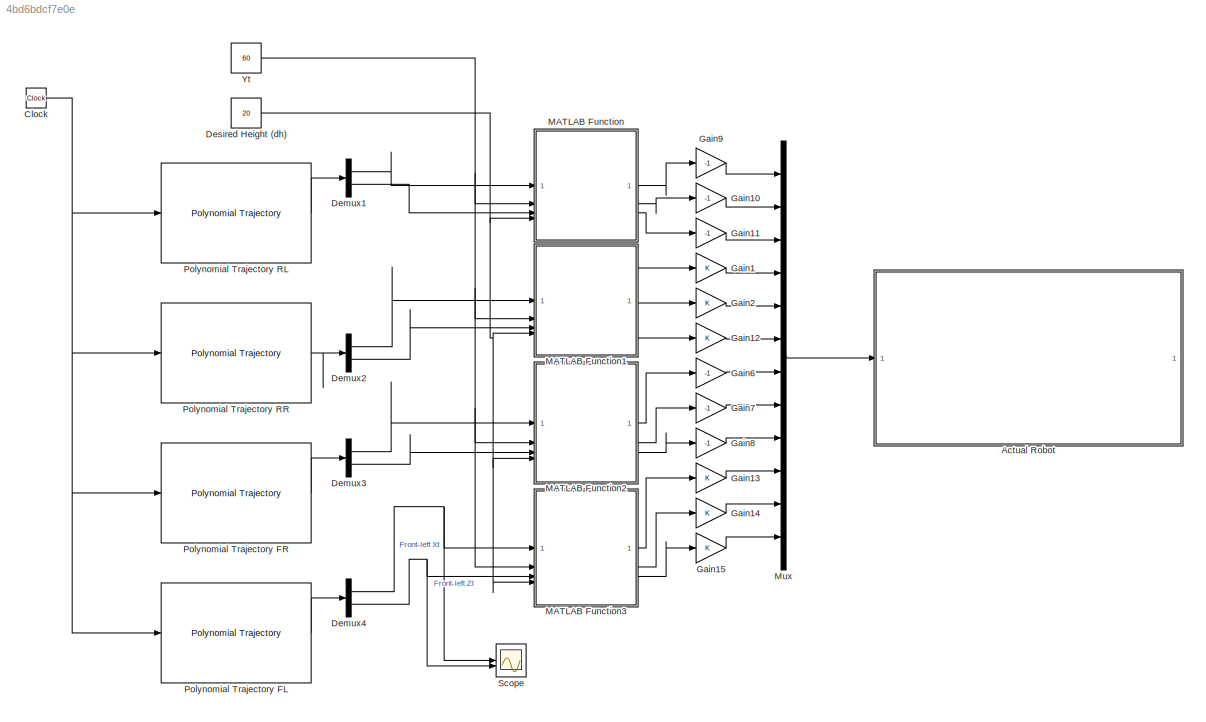
MODEL slx_4bd6bdcf7e0e
KIND model
CONFIG AbsTol = auto
CONFIG EnableMultiTasking = off
CONFIG FixedStep = 0.01
CONFIG MaxStep = auto
CONFIG MinStep = auto
CONFIG RelTol = 1e-3
CONFIG SampleTimeConstraint = Unconstrained
CONFIG SolverName = ode23tb
CONFIG StartTime = 0.0
CONFIG StopTime = 10
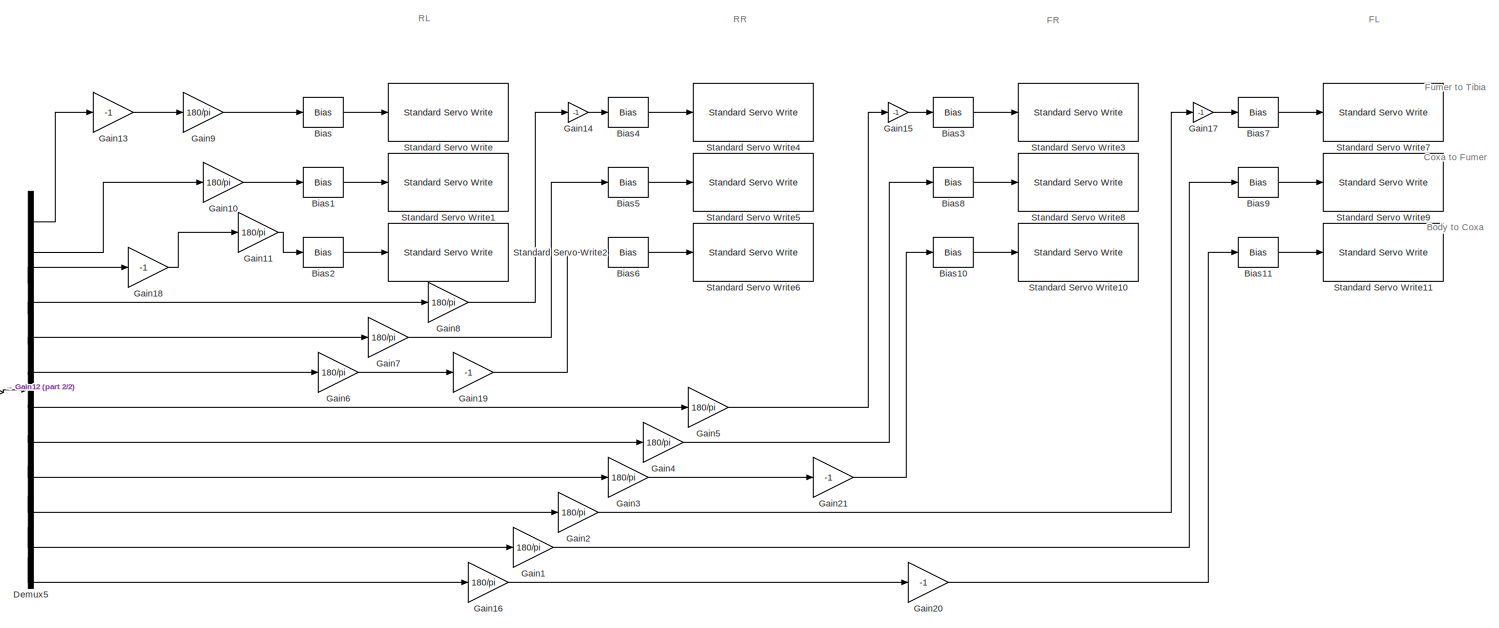
[diagram: Actual Robot - part 1/2, most of the canvas]
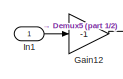
[diagram: Actual Robot - part 2/2, middle left region]
BLOCK [SubSystem] Actual Robot
BLOCK [Bias] Actual Robot/Bias
  Bias = 90
  SaturateOnIntegerOverflow = off
BLOCK [Bias] Actual Robot/Bias1
  Bias = 90
  SaturateOnIntegerOverflow = off
BLOCK [Bias] Actual Robot/Bias10
  Bias = 90
  SaturateOnIntegerOverflow = off
BLOCK [Bias] Actual Robot/Bias11
  Bias = 90
  SaturateOnIntegerOverflow = off
BLOCK [Bias] Actual Robot/Bias2
  Bias = 90
  SaturateOnIntegerOverflow = off
BLOCK [Bias] Actual Robot/Bias3
  Bias = 90
  SaturateOnIntegerOverflow = off
BLOCK [Bias] Actual Robot/Bias4
  Bias = 90
  SaturateOnIntegerOverflow = off
BLOCK [Bias] Actual Robot/Bias5
  Bias = 90
  SaturateOnIntegerOverflow = off
BLOCK [Bias] Actual Robot/Bias6
  Bias = 90
  SaturateOnIntegerOverflow = off
BLOCK [Bias] Actual Robot/Bias7
  Bias = 90
  SaturateOnIntegerOverflow = off
BLOCK [Bias] Actual Robot/Bias8
  Bias = 90
  SaturateOnIntegerOverflow = off
BLOCK [Bias] Actual Robot/Bias9
  Bias = 90
  SaturateOnIntegerOverflow = off
BLOCK [Demux] Actual Robot/Demux5
  Outputs = 12
BLOCK [Gain] Actual Robot/Gain1
  Gain = 180/pi
BLOCK [Gain] Actual Robot/Gain10
  Gain = 180/pi
BLOCK [Gain] Actual Robot/Gain11
  Gain = 180/pi
BLOCK [Gain] Actual Robot/Gain12
  Gain = -1
BLOCK [Gain] Actual Robot/Gain13
  Gain = -1
BLOCK [Gain] Actual Robot/Gain14
  Gain = -1
BLOCK [Gain] Actual Robot/Gain15
  Gain = -1
BLOCK [Gain] Actual Robot/Gain16
  Gain = 180/pi
BLOCK [Gain] Actual Robot/Gain17
  Gain = -1
BLOCK [Gain] Actual Robot/Gain18
  Gain = -1
BLOCK [Gain] Actual Robot/Gain19
  Gain = -1
BLOCK [Gain] Actual Robot/Gain2
  Gain = 180/pi
BLOCK [Gain] Actual Robot/Gain20
  Gain = -1
BLOCK [Gain] Actual Robot/Gain21
  Gain = -1
BLOCK [Gain] Actual Robot/Gain3
  Gain = 180/pi
BLOCK [Gain] Actual Robot/Gain4
  Gain = 180/pi
BLOCK [Gain] Actual Robot/Gain5
  Gain = 180/pi
BLOCK [Gain] Actual Robot/Gain6
  Gain = 180/pi
BLOCK [Gain] Actual Robot/Gain7
  Gain = 180/pi
BLOCK [Gain] Actual Robot/Gain8
  Gain = 180/pi
BLOCK [Gain] Actual Robot/Gain9
  Gain = 180/pi
BLOCK [Inport] Actual Robot/In1
BLOCK [Reference] Actual Robot/Standard Servo Write  REF=arduinolib/Standard Servo Write
  SourceBlock = arduinolib/Standard Servo Write
  SourceType = Arduino Standard Servo Write
BLOCK [Reference] Actual Robot/Standard Servo Write1  REF=arduinolib/Standard Servo Write
  SourceBlock = arduinolib/Standard Servo Write
  SourceType = Arduino Standard Servo Write
BLOCK [Reference] Actual Robot/Standard Servo Write10  REF=arduinolib/Standard Servo Write
  SourceBlock = arduinolib/Standard Servo Write
  SourceType = Arduino Standard Servo Write
BLOCK [Reference] Actual Robot/Standard Servo Write11  REF=arduinolib/Standard Servo Write
  SourceBlock = arduinolib/Standard Servo Write
  SourceType = Arduino Standard Servo Write
BLOCK [Reference] Actual Robot/Standard Servo Write2  REF=arduinolib/Standard Servo Write
  SourceBlock = arduinolib/Standard Servo Write
  SourceType = Arduino Standard Servo Write
BLOCK [Reference] Actual Robot/Standard Servo Write3  REF=arduinolib/Standard Servo Write
  SourceBlock = arduinolib/Standard Servo Write
  SourceType = Arduino Standard Servo Write
BLOCK [Reference] Actual Robot/Standard Servo Write4  REF=arduinolib/Standard Servo Write
  SourceBlock = arduinolib/Standard Servo Write
  SourceType = Arduino Standard Servo Write
BLOCK [Reference] Actual Robot/Standard Servo Write5  REF=arduinolib/Standard Servo Write
  SourceBlock = arduinolib/Standard Servo Write
  SourceType = Arduino Standard Servo Write
BLOCK [Reference] Actual Robot/Standard Servo Write6  REF=arduinolib/Standard Servo Write
  SourceBlock = arduinolib/Standard Servo Write
  SourceType = Arduino Standard Servo Write
BLOCK [Reference] Actual Robot/Standard Servo Write7  REF=arduinolib/Standard Servo Write
  SourceBlock = arduinolib/Standard Servo Write
  SourceType = Arduino Standard Servo Write
BLOCK [Reference] Actual Robot/Standard Servo Write8  REF=arduinolib/Standard Servo Write
  SourceBlock = arduinolib/Standard Servo Write
  SourceType = Arduino Standard Servo Write
BLOCK [Reference] Actual Robot/Standard Servo Write9  REF=arduinolib/Standard Servo Write
  SourceBlock = arduinolib/Standard Servo Write
  SourceType = Arduino Standard Servo Write
BLOCK [Clock] Clock
BLOCK [Demux] Demux1
  Outputs = 2
BLOCK [Demux] Demux2
  Outputs = 2
BLOCK [Demux] Demux3
  Outputs = 2
BLOCK [Demux] Demux4
  Outputs = 2
BLOCK [Constant] Desired Height (dh)
  Value = 20
BLOCK [Gain] Gain1
BLOCK [Gain] Gain10
  Gain = -1
BLOCK [Gain] Gain11
  Gain = -1
BLOCK [Gain] Gain12
BLOCK [Gain] Gain13
BLOCK [Gain] Gain14
BLOCK [Gain] Gain15
BLOCK [Gain] Gain2
BLOCK [Gain] Gain6
  Gain = -1
BLOCK [Gain] Gain7
  Gain = -1
BLOCK [Gain] Gain8
  Gain = -1
BLOCK [Gain] Gain9
  Gain = -1
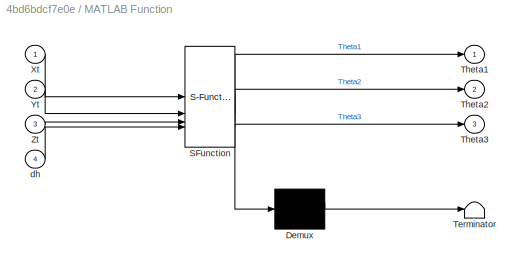
BLOCK [SubSystem] MATLAB Function
  ErrorFcn = Stateflow.Translate.translate
  PermitHierarchicalResolution = ExplicitOnly
  SFBlockType = MATLAB Function
  TreatAsAtomicUnit = on
BLOCK [Demux] MATLAB Function/ Demux 
  Outputs = 1
BLOCK [S-Function] MATLAB Function/ SFunction 
  EnableBusSupport = on
  FunctionName = sf_sfun
  PortCounts = [4 4]
  SFcnIsStateOwnerBlock = off
  SFunctionDeploymentMode = off
  Tag = Stateflow S-Function 3
BLOCK [Terminator] MATLAB Function/ Terminator 
BLOCK [Outport] MATLAB Function/Theta1
BLOCK [Outport] MATLAB Function/Theta2
  Port = 2
BLOCK [Outport] MATLAB Function/Theta3
  Port = 3
BLOCK [Inport] MATLAB Function/Xt
BLOCK [Inport] MATLAB Function/Yt
  Port = 2
BLOCK [Inport] MATLAB Function/Zt
  Port = 3
BLOCK [Inport] MATLAB Function/dh
  Port = 4
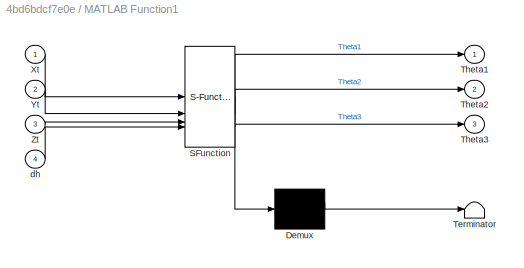
BLOCK [SubSystem] MATLAB Function1
  ErrorFcn = Stateflow.Translate.translate
  PermitHierarchicalResolution = ExplicitOnly
  SFBlockType = MATLAB Function
  TreatAsAtomicUnit = on
BLOCK [Demux] MATLAB Function1/ Demux 
  Outputs = 1
BLOCK [S-Function] MATLAB Function1/ SFunction 
  EnableBusSupport = on
  FunctionName = sf_sfun
  PortCounts = [4 4]
  SFcnIsStateOwnerBlock = off
  SFunctionDeploymentMode = off
  Tag = Stateflow S-Function 1
BLOCK [Terminator] MATLAB Function1/ Terminator 
BLOCK [Outport] MATLAB Function1/Theta1
BLOCK [Outport] MATLAB Function1/Theta2
  Port = 2
BLOCK [Outport] MATLAB Function1/Theta3
  Port = 3
BLOCK [Inport] MATLAB Function1/Xt
BLOCK [Inport] MATLAB Function1/Yt
  Port = 2
BLOCK [Inport] MATLAB Function1/Zt
  Port = 3
BLOCK [Inport] MATLAB Function1/dh
  Port = 4
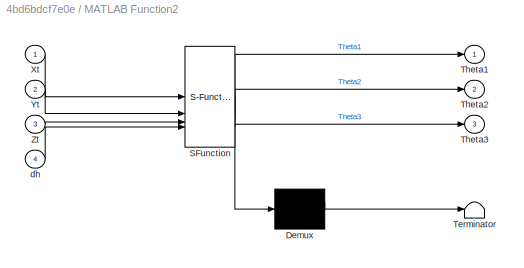
BLOCK [SubSystem] MATLAB Function2
  ErrorFcn = Stateflow.Translate.translate
  PermitHierarchicalResolution = ExplicitOnly
  SFBlockType = MATLAB Function
  TreatAsAtomicUnit = on
BLOCK [Demux] MATLAB Function2/ Demux 
  Outputs = 1
BLOCK [S-Function] MATLAB Function2/ SFunction 
  EnableBusSupport = on
  FunctionName = sf_sfun
  PortCounts = [4 4]
  SFcnIsStateOwnerBlock = off
  SFunctionDeploymentMode = off
  Tag = Stateflow S-Function 2
BLOCK [Terminator] MATLAB Function2/ Terminator 
BLOCK [Outport] MATLAB Function2/Theta1
BLOCK [Outport] MATLAB Function2/Theta2
  Port = 2
BLOCK [Outport] MATLAB Function2/Theta3
  Port = 3
BLOCK [Inport] MATLAB Function2/Xt
BLOCK [Inport] MATLAB Function2/Yt
  Port = 2
BLOCK [Inport] MATLAB Function2/Zt
  Port = 3
BLOCK [Inport] MATLAB Function2/dh
  Port = 4
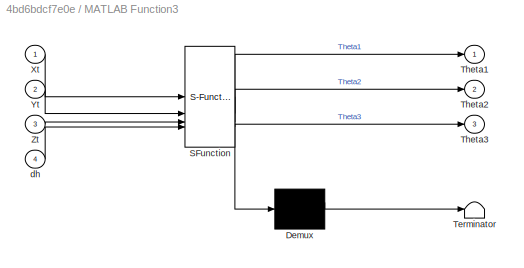
BLOCK [SubSystem] MATLAB Function3
  ErrorFcn = Stateflow.Translate.translate
  PermitHierarchicalResolution = ExplicitOnly
  SFBlockType = MATLAB Function
  TreatAsAtomicUnit = on
BLOCK [Demux] MATLAB Function3/ Demux 
  Outputs = 1
BLOCK [S-Function] MATLAB Function3/ SFunction 
  EnableBusSupport = on
  FunctionName = sf_sfun
  PortCounts = [4 4]
  SFcnIsStateOwnerBlock = off
  SFunctionDeploymentMode = off
  Tag = Stateflow S-Function 4
BLOCK [Terminator] MATLAB Function3/ Terminator 
BLOCK [Outport] MATLAB Function3/Theta1
BLOCK [Outport] MATLAB Function3/Theta2
  Port = 2
BLOCK [Outport] MATLAB Function3/Theta3
  Port = 3
BLOCK [Inport] MATLAB Function3/Xt
BLOCK [Inport] MATLAB Function3/Yt
  Port = 2
BLOCK [Inport] MATLAB Function3/Zt
  Port = 3
BLOCK [Inport] MATLAB Function3/dh
  Port = 4
BLOCK [Mux] Mux
  DisplayOption = bar
  Inputs = 12
BLOCK [Reference] Polynomial Trajectory FL  REF=robotcorelib/Polynomial Trajectory
  SourceBlock = robotcorelib/Polynomial Trajectory
  SourceType = robotics.slcore.internal.block.PolyTrajSys
BLOCK [Reference] Polynomial Trajectory FR  REF=robotcorelib/Polynomial Trajectory
  SourceBlock = robotcorelib/Polynomial Trajectory
  SourceType = robotics.slcore.internal.block.PolyTrajSys
BLOCK [Reference] Polynomial Trajectory RL  REF=robotcorelib/Polynomial Trajectory
  SourceBlock = robotcorelib/Polynomial Trajectory
  SourceType = robotics.slcore.internal.block.PolyTrajSys
BLOCK [Reference] Polynomial Trajectory RR  REF=robotcorelib/Polynomial Trajectory
  SourceBlock = robotcorelib/Polynomial Trajectory
  SourceType = robotics.slcore.internal.block.PolyTrajSys
BLOCK [Scope] Scope
  Floating = off
  NumInputPorts = 2
  ScopeSpecificationString = Simulink.scopes.TimeScopeBlockCfg('CurrentConfiguration', extmgr.ConfigurationSet(extmgr.Configuration('Core','General UI',true,'FigureColor',[1 1 1]),extmgr.Configuration('Core','Source UI',true),extmgr.Configuration('Sources','WiredSimulink',true),extmgr.Configuration('Visuals','Time Domain',true,'SerializedDisplays',{struct('MinYLimReal','-16.25','MaxYLimReal','46.25','YLabelReal','','MinYLimMa...<+1694ch>
BLOCK [Constant] Yt
  Value = 60
ANNOTATION Actual Robot: Body to Coxa
ANNOTATION Actual Robot: Coxa to Fumer
ANNOTATION Actual Robot: FL
ANNOTATION Actual Robot: FR
ANNOTATION Actual Robot: Fumer to Tibia
ANNOTATION Actual Robot: RR
ANNOTATION Actual Robot: RL
LINE Actual Robot/Bias10:1 -> Actual Robot/Standard Servo Write10:1
LINE Actual Robot/Bias11:1 -> Actual Robot/Standard Servo Write11:1
LINE Actual Robot/Bias1:1 -> Actual Robot/Standard Servo Write1:1
LINE Actual Robot/Bias2:1 -> Actual Robot/Standard Servo Write2:1
LINE Actual Robot/Bias3:1 -> Actual Robot/Standard Servo Write3:1
LINE Actual Robot/Bias4:1 -> Actual Robot/Standard Servo Write4:1
LINE Actual Robot/Bias5:1 -> Actual Robot/Standard Servo Write5:1
LINE Actual Robot/Bias6:1 -> Actual Robot/Standard Servo Write6:1
LINE Actual Robot/Bias7:1 -> Actual Robot/Standard Servo Write7:1
LINE Actual Robot/Bias8:1 -> Actual Robot/Standard Servo Write8:1
LINE Actual Robot/Bias9:1 -> Actual Robot/Standard Servo Write9:1
LINE Actual Robot/Bias:1 -> Actual Robot/Standard Servo Write:1
LINE Actual Robot/Demux5:1 -> Actual Robot/Gain13:1
LINE Actual Robot/Demux5:10 -> Actual Robot/Gain2:1
LINE Actual Robot/Demux5:11 -> Actual Robot/Gain1:1
LINE Actual Robot/Demux5:12 -> Actual Robot/Gain16:1
LINE Actual Robot/Demux5:2 -> Actual Robot/Gain10:1
LINE Actual Robot/Demux5:3 -> Actual Robot/Gain18:1
LINE Actual Robot/Demux5:4 -> Actual Robot/Gain8:1
LINE Actual Robot/Demux5:5 -> Actual Robot/Gain7:1
LINE Actual Robot/Demux5:6 -> Actual Robot/Gain6:1
LINE Actual Robot/Demux5:7 -> Actual Robot/Gain5:1
LINE Actual Robot/Demux5:8 -> Actual Robot/Gain4:1
LINE Actual Robot/Demux5:9 -> Actual Robot/Gain3:1
LINE Actual Robot/Gain10:1 -> Actual Robot/Bias1:1
LINE Actual Robot/Gain11:1 -> Actual Robot/Bias2:1
LINE Actual Robot/Gain12:1 -> Actual Robot/Demux5:1
LINE Actual Robot/Gain13:1 -> Actual Robot/Gain9:1
LINE Actual Robot/Gain14:1 -> Actual Robot/Bias4:1
LINE Actual Robot/Gain15:1 -> Actual Robot/Bias3:1
LINE Actual Robot/Gain16:1 -> Actual Robot/Gain20:1
LINE Actual Robot/Gain17:1 -> Actual Robot/Bias7:1
LINE Actual Robot/Gain18:1 -> Actual Robot/Gain11:1
LINE Actual Robot/Gain19:1 -> Actual Robot/Bias6:1
LINE Actual Robot/Gain1:1 -> Actual Robot/Bias9:1
LINE Actual Robot/Gain20:1 -> Actual Robot/Bias11:1
LINE Actual Robot/Gain21:1 -> Actual Robot/Bias10:1
LINE Actual Robot/Gain2:1 -> Actual Robot/Gain17:1
LINE Actual Robot/Gain3:1 -> Actual Robot/Gain21:1
LINE Actual Robot/Gain4:1 -> Actual Robot/Bias8:1
LINE Actual Robot/Gain5:1 -> Actual Robot/Gain15:1
LINE Actual Robot/Gain6:1 -> Actual Robot/Gain19:1
LINE Actual Robot/Gain7:1 -> Actual Robot/Bias5:1
LINE Actual Robot/Gain8:1 -> Actual Robot/Gain14:1
LINE Actual Robot/Gain9:1 -> Actual Robot/Bias:1
LINE Actual Robot/In1:1 -> Actual Robot/Gain12:1
NET Clock:1 -> Polynomial Trajectory FL:1, Polynomial Trajectory FR:1, Polynomial Trajectory RL:1, Polynomial Trajectory RR:1
LINE Demux1:1 -> MATLAB Function:1
LINE Demux1:2 -> MATLAB Function:3
LINE Demux2:1 -> MATLAB Function1:1
LINE Demux2:2 -> MATLAB Function1:3
LINE Demux3:1 -> MATLAB Function2:1
LINE Demux3:2 -> MATLAB Function2:3
NET Demux4:1 -> MATLAB Function3:1, Scope:1
NET Demux4:2 -> MATLAB Function3:3, Scope:2
NET Desired Height (dh):1 -> MATLAB Function1:4, MATLAB Function2:4, MATLAB Function3:4, MATLAB Function:4
LINE Gain10:1 -> Mux:2
LINE Gain11:1 -> Mux:3
LINE Gain12:1 -> Mux:6
LINE Gain13:1 -> Mux:10
LINE Gain14:1 -> Mux:11
LINE Gain15:1 -> Mux:12
LINE Gain1:1 -> Mux:4
LINE Gain2:1 -> Mux:5
LINE Gain6:1 -> Mux:7
LINE Gain7:1 -> Mux:8
LINE Gain8:1 -> Mux:9
LINE Gain9:1 -> Mux:1
LINE MATLAB Function1:1 -> Gain1:1
LINE MATLAB Function1:2 -> Gain2:1
LINE MATLAB Function1:3 -> Gain12:1
LINE MATLAB Function2:1 -> Gain6:1
LINE MATLAB Function2:2 -> Gain7:1
LINE MATLAB Function2:3 -> Gain8:1
LINE MATLAB Function3:1 -> Gain13:1
LINE MATLAB Function3:2 -> Gain14:1
LINE MATLAB Function3:3 -> Gain15:1
LINE MATLAB Function:1 -> Gain9:1
LINE MATLAB Function:2 -> Gain10:1
LINE MATLAB Function:3 -> Gain11:1
LINE Mux:1 -> Actual Robot:1
LINE Polynomial Trajectory FL:1 -> Demux4:1
LINE Polynomial Trajectory FR:1 -> Demux3:1
LINE Polynomial Trajectory RL:1 -> Demux1:1
LINE Polynomial Trajectory RR:1 -> Demux2:1
NET Yt:1 -> MATLAB Function1:2, MATLAB Function2:2, MATLAB Function3:2, MATLAB Function:2
note: NET lines group one-source signal fan-out (src -> all destinations, sorted); 1:1 wires keep LINE
CHART MATLAB Function1 states=1 transitions=1
  STATE_LABEL 'eML_blk_kernel()'
  STATE_LABEL 'SCRIPT:\nfunction [Theta1,Theta2,Theta3] = fcn(Xt,Yt,Zt,dh)\n%Desired_height (dh) of the SV3 Axel \nZ_offset = (dh +22.5 -Zt);\nD = sqrt((Xt)^2 + (Yt)^2);\nd = D - 27.5;\nR = sqrt((d)^2 + (Z_offset)^2);\nTheta3 = -(atan( Xt/Yt ));\nTheta2 =pi/2-(acos((55^2+R^2-80^2)/(2*55*R))+acos(Z_offset/R)) ;\nTheta1 =pi/2-(acos((55^2+80^2-R^2)/(2*55*80)));\n'  <repeated x4 — deduplicated; at blocks: MATLAB Function1, MATLAB Function2, MATLAB Function, MATLAB Function3>
CHART MATLAB Function2 states=1 transitions=1
  STATE_LABEL 'eML_blk_kernel()'
CHART MATLAB Function states=1 transitions=1
  STATE_LABEL 'eML_blk_kernel()'
CHART MATLAB Function3 states=1 transitions=1
  STATE_LABEL 'eML_blk_kernel()'
CHART  states=0 transitions=0
CHART  states=0 transitions=0
CHART  states=0 transitions=0
CHART  states=0 transitions=0
